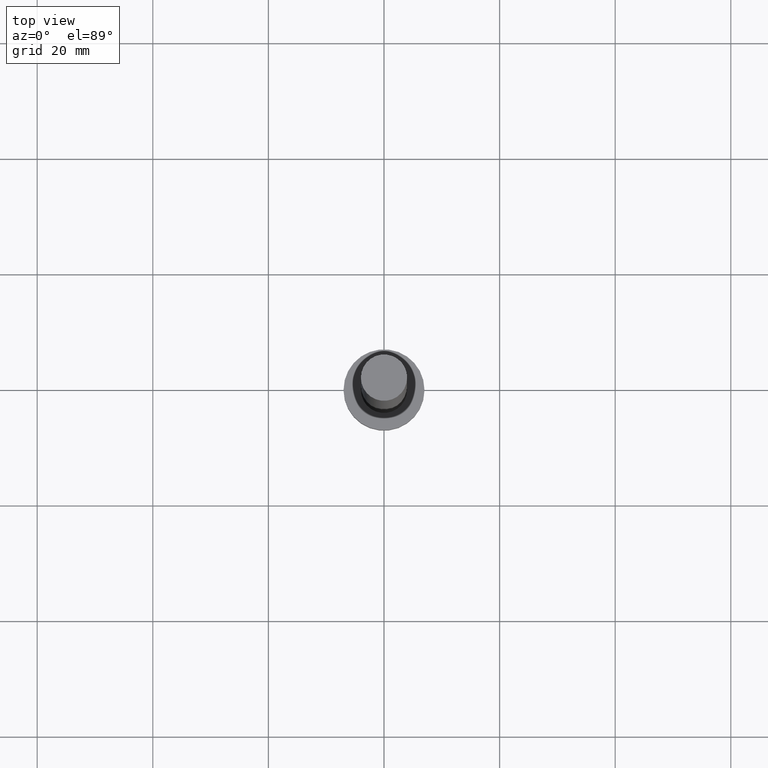
[diagram: clean part render]
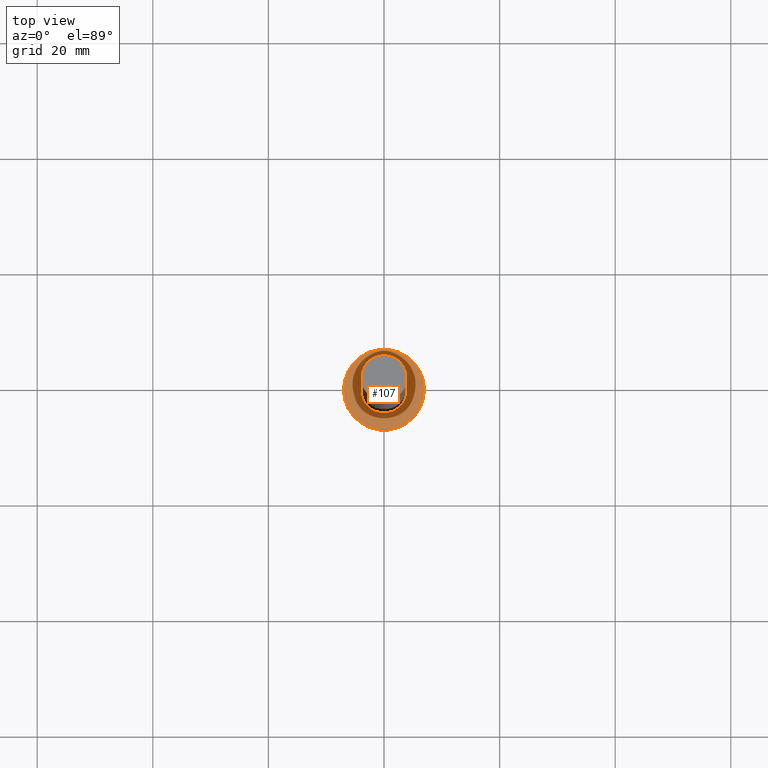
[diagram: same view with one face highlighted and labeled with its STEP entity id]
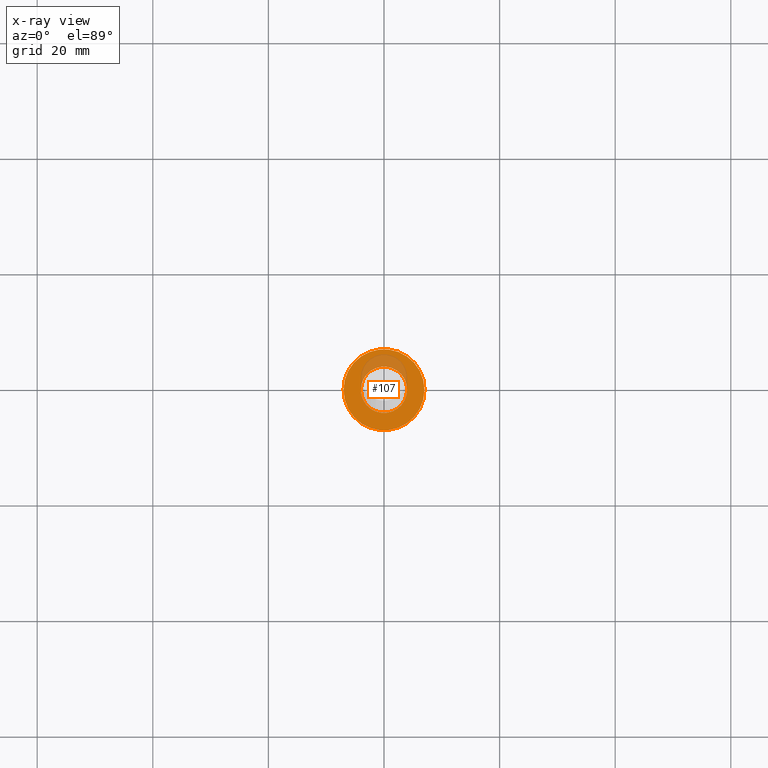
[diagram: x-ray of the same camera — body ghosted, the highlighted face saturated]
A machine part, top view. The second image highlights one B-rep face of the part: STEP entity #107.
The next image is the same camera in x-ray: the body ghosted, the highlighted face saturated — about 16% of this face is hidden behind the body in this view.
In plain terms, the highlighted planar face has unit normal (0, 0, 1).
Its self-contained STEP definition (entity closure, byte-faithful):
#5 = AXIS2_PLACEMENT_3D ( 'NONE', #43, #203, #212 ) ;
#9 = ORIENTED_EDGE ( 'NONE', *, *, #154, .T. ) ;
#16 = FACE_BOUND ( 'NONE', #252, .T. ) ;
#23 = CARTESIAN_POINT ( 'NONE',  ( 0.000000000000000000, 0.000000000000000000, 5.000000000000000000 ) ) ;
#36 = CARTESIAN_POINT ( 'NONE',  ( 7.000000000000000000, 8.572527594031473190E-16, 5.000000000000000000 ) ) ;
#43 = CARTESIAN_POINT ( 'NONE',  ( 0.000000000000000000, 0.000000000000000000, 5.000000000000000000 ) ) ;
#48 = EDGE_CURVE ( 'NONE', #121, #171, #91, .T. ) ;
#58 = DIRECTION ( 'NONE',  ( 1.000000000000000000, 0.000000000000000000, 0.000000000000000000 ) ) ;
#76 = DIRECTION ( 'NONE',  ( 0.000000000000000000, 0.000000000000000000, 1.000000000000000000 ) ) ;
#79 = FACE_OUTER_BOUND ( 'NONE', #184, .T. ) ;
#90 = VERTEX_POINT ( 'NONE', #36 ) ;
#91 = CIRCLE ( 'NONE', #216, 4.000000000000000000 ) ;
#105 = DIRECTION ( 'NONE',  ( 0.000000000000000000, 0.000000000000000000, 1.000000000000000000 ) ) ;
#107 = ADVANCED_FACE ( 'NONE', ( #16, #79 ), #178, .T. ) ;
#109 = AXIS2_PLACEMENT_3D ( 'NONE', #218, #236, #180 ) ;
#121 = VERTEX_POINT ( 'NONE', #150 ) ;
#124 = AXIS2_PLACEMENT_3D ( 'NONE', #23, #105, #214 ) ;
#131 = CARTESIAN_POINT ( 'NONE',  ( 4.000000000000000000, 4.898587196589412829E-16, 5.000000000000000000 ) ) ;
#142 = EDGE_CURVE ( 'NONE', #90, #248, #161, .T. ) ;
#150 = CARTESIAN_POINT ( 'NONE',  ( -4.000000000000000000, 0.000000000000000000, 5.000000000000000000 ) ) ;
#151 = CIRCLE ( 'NONE', #109, 7.000000000000000000 ) ;
#154 = EDGE_CURVE ( 'NONE', #248, #90, #151, .T. ) ;
#161 = CIRCLE ( 'NONE', #124, 7.000000000000000000 ) ;
#171 = VERTEX_POINT ( 'NONE', #131 ) ;
#177 = DIRECTION ( 'NONE',  ( 1.000000000000000000, 0.000000000000000000, -0.000000000000000000 ) ) ;
#178 = PLANE ( 'NONE',  #255 ) ;
#180 = DIRECTION ( 'NONE',  ( 1.000000000000000000, 0.000000000000000000, 0.000000000000000000 ) ) ;
#184 = EDGE_LOOP ( 'NONE', ( #9, #224 ) ) ;
#196 = CARTESIAN_POINT ( 'NONE',  ( 0.000000000000000000, 0.000000000000000000, 5.000000000000000000 ) ) ;
#200 = EDGE_CURVE ( 'NONE', #171, #121, #225, .T. ) ;
#201 = CARTESIAN_POINT ( 'NONE',  ( -7.000000000000000000, 0.000000000000000000, 5.000000000000000000 ) ) ;
#203 = DIRECTION ( 'NONE',  ( 0.000000000000000000, 0.000000000000000000, 1.000000000000000000 ) ) ;
#212 = DIRECTION ( 'NONE',  ( 1.000000000000000000, 0.000000000000000000, 0.000000000000000000 ) ) ;
#214 = DIRECTION ( 'NONE',  ( 1.000000000000000000, 0.000000000000000000, 0.000000000000000000 ) ) ;
#216 = AXIS2_PLACEMENT_3D ( 'NONE', #196, #76, #58 ) ;
#218 = CARTESIAN_POINT ( 'NONE',  ( 0.000000000000000000, 0.000000000000000000, 5.000000000000000000 ) ) ;
#224 = ORIENTED_EDGE ( 'NONE', *, *, #142, .T. ) ;
#225 = CIRCLE ( 'NONE', #5, 4.000000000000000000 ) ;
#234 = DIRECTION ( 'NONE',  ( 0.000000000000000000, 0.000000000000000000, 1.000000000000000000 ) ) ;
#236 = DIRECTION ( 'NONE',  ( 0.000000000000000000, 0.000000000000000000, 1.000000000000000000 ) ) ;
#242 = ORIENTED_EDGE ( 'NONE', *, *, #200, .F. ) ;
#247 = ORIENTED_EDGE ( 'NONE', *, *, #48, .F. ) ;
#248 = VERTEX_POINT ( 'NONE', #201 ) ;
#252 = EDGE_LOOP ( 'NONE', ( #247, #242 ) ) ;
#254 = CARTESIAN_POINT ( 'NONE',  ( 0.000000000000000000, 0.000000000000000000, 5.000000000000000000 ) ) ;
#255 = AXIS2_PLACEMENT_3D ( 'NONE', #254, #234, #177 ) ;